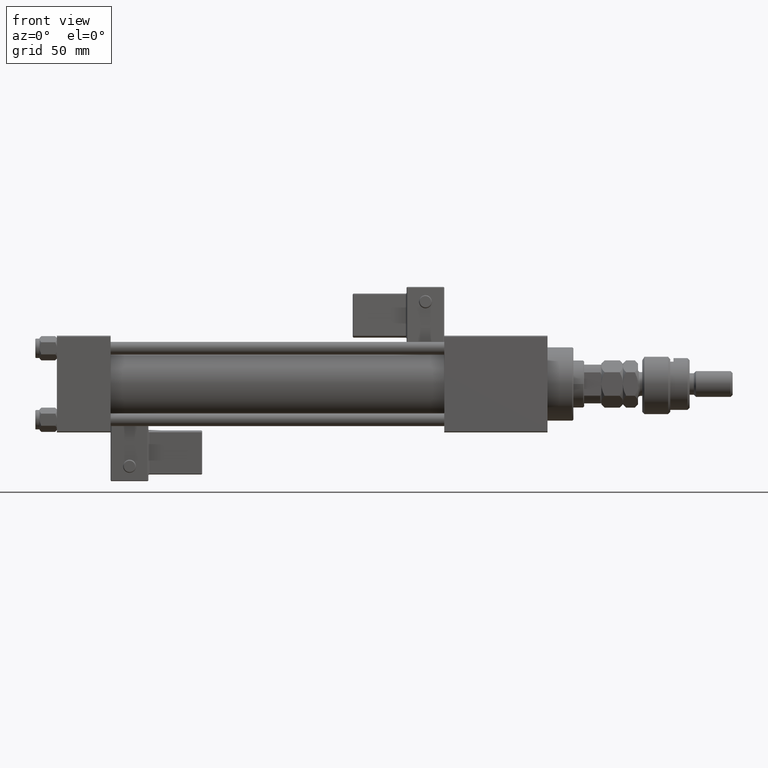
[diagram: clean part render]
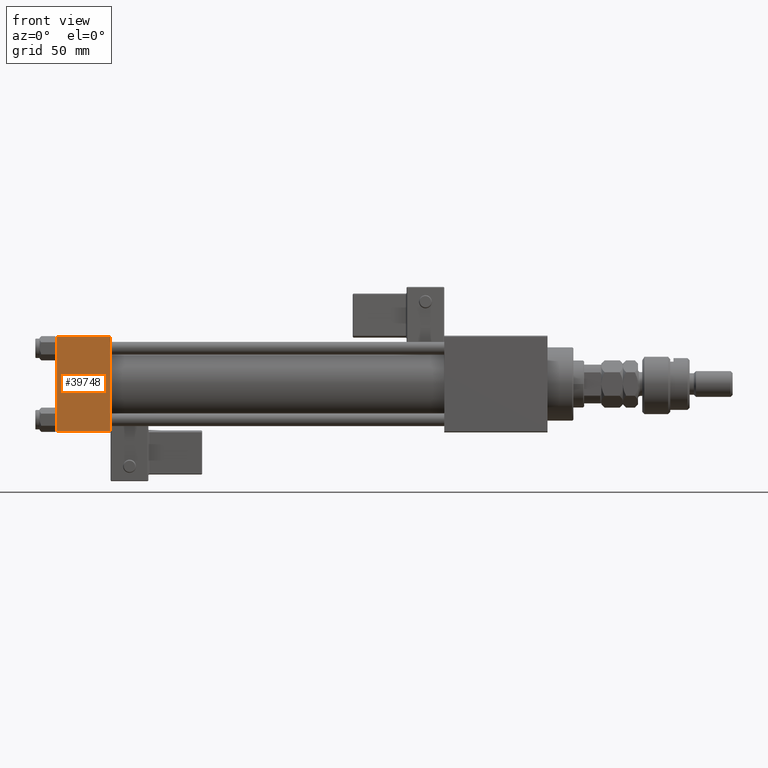
[diagram: same view with one face highlighted and labeled with its STEP entity id]
A machine part, front view. The second image highlights one B-rep face of the part: STEP entity #39748.
In plain terms, the highlighted planar face has unit normal (0, 1, 0).
Its self-contained STEP definition (entity closure, byte-faithful):
#407 = DIRECTION ( 'NONE',  ( 0.000000000000000000, -0.000000000000000000, 1.000000000000000000 ) ) ;
#929 = CARTESIAN_POINT ( 'NONE',  ( 25.00000000000000000, -22.50000000000000000, 22.50000000000000000 ) ) ;
#1609 = CARTESIAN_POINT ( 'NONE',  ( 25.00000000000000000, -22.50000000000000000, 22.00000000000000000 ) ) ;
#2907 = VERTEX_POINT ( 'NONE', #5534 ) ;
#5534 = CARTESIAN_POINT ( 'NONE',  ( 0.000000000000000000, -22.50000000000000000, -21.99999999999997158 ) ) ;
#5650 = VECTOR ( 'NONE', #39744, 1000.000000000000000 ) ;
#7243 = EDGE_LOOP ( 'NONE', ( #9969, #51380, #36291, #39275 ) ) ;
#9949 = LINE ( 'NONE', #27053, #32285 ) ;
#9969 = ORIENTED_EDGE ( 'NONE', *, *, #36339, .T. ) ;
#16406 = FACE_OUTER_BOUND ( 'NONE', #7243, .T. ) ;
#17090 = CARTESIAN_POINT ( 'NONE',  ( 25.00000000000000000, -22.50000000000000000, -21.99999999999997158 ) ) ;
#18046 = DIRECTION ( 'NONE',  ( 0.000000000000000000, 0.000000000000000000, -1.000000000000000000 ) ) ;
#23518 = LINE ( 'NONE', #26908, #5650 ) ;
#25556 = AXIS2_PLACEMENT_3D ( 'NONE', #34352, #25956, #407 ) ;
#25956 = DIRECTION ( 'NONE',  ( -0.000000000000000000, 1.000000000000000000, 0.000000000000000000 ) ) ;
#26342 = EDGE_CURVE ( 'NONE', #43109, #46437, #9949, .T. ) ;
#26908 = CARTESIAN_POINT ( 'NONE',  ( 0.000000000000000000, -22.50000000000000000, 22.50000000000000000 ) ) ;
#27053 = CARTESIAN_POINT ( 'NONE',  ( 25.00000000000000000, -22.50000000000000000, 22.00000000000000000 ) ) ;
#32285 = VECTOR ( 'NONE', #41256, 1000.000000000000000 ) ;
#33598 = CARTESIAN_POINT ( 'NONE',  ( 0.000000000000000000, -22.50000000000000000, 22.00000000000000000 ) ) ;
#34352 = CARTESIAN_POINT ( 'NONE',  ( 25.00000000000000000, -22.50000000000000000, 22.50000000000000000 ) ) ;
#35050 = EDGE_CURVE ( 'NONE', #2907, #49725, #54976, .T. ) ;
#35416 = LINE ( 'NONE', #929, #37063 ) ;
#36291 = ORIENTED_EDGE ( 'NONE', *, *, #53318, .F. ) ;
#36339 = EDGE_CURVE ( 'NONE', #46437, #2907, #23518, .T. ) ;
#37063 = VECTOR ( 'NONE', #18046, 1000.000000000000000 ) ;
#37333 = DIRECTION ( 'NONE',  ( 1.000000000000000000, 0.000000000000000000, 0.000000000000000000 ) ) ;
#37958 = PLANE ( 'NONE',  #25556 ) ;
#39275 = ORIENTED_EDGE ( 'NONE', *, *, #26342, .T. ) ;
#39744 = DIRECTION ( 'NONE',  ( 0.000000000000000000, 0.000000000000000000, -1.000000000000000000 ) ) ;
#39748 = ADVANCED_FACE ( 'NONE', ( #16406 ), #37958, .F. ) ;
#41256 = DIRECTION ( 'NONE',  ( -1.000000000000000000, 0.000000000000000000, 0.000000000000000000 ) ) ;
#41504 = VECTOR ( 'NONE', #37333, 1000.000000000000000 ) ;
#43109 = VERTEX_POINT ( 'NONE', #1609 ) ;
#46437 = VERTEX_POINT ( 'NONE', #33598 ) ;
#49725 = VERTEX_POINT ( 'NONE', #17090 ) ;
#50765 = CARTESIAN_POINT ( 'NONE',  ( 25.00000000000000000, -22.50000000000000000, -21.99999999999998579 ) ) ;
#51380 = ORIENTED_EDGE ( 'NONE', *, *, #35050, .T. ) ;
#53318 = EDGE_CURVE ( 'NONE', #43109, #49725, #35416, .T. ) ;
#54976 = LINE ( 'NONE', #50765, #41504 ) ;